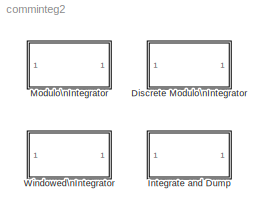
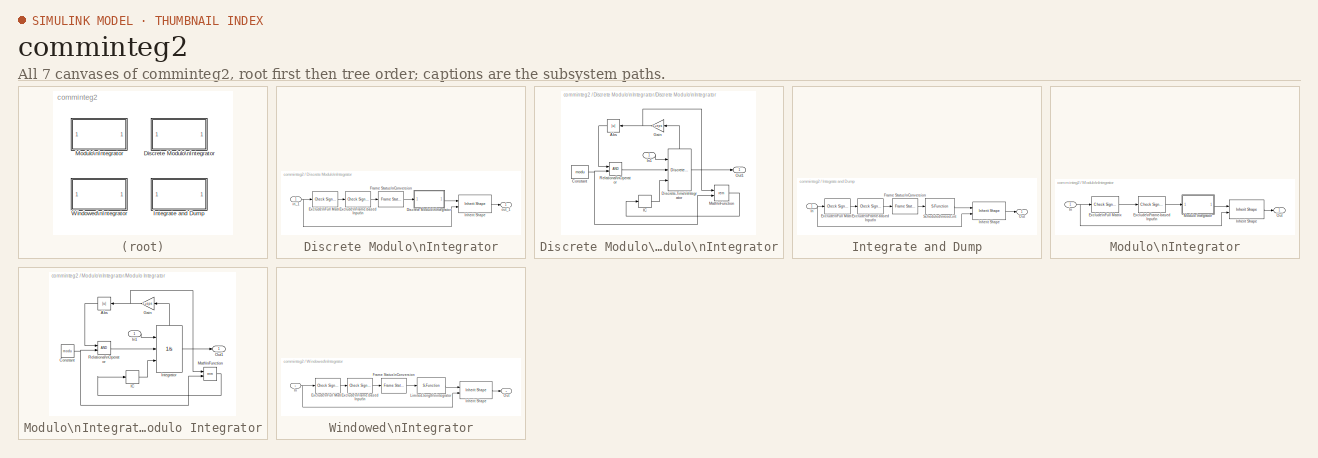
[diagram: thumbnail index - all 7 canvases of the model, root first then tree order]
MODEL comminteg2
KIND library
BLOCK [SubSystem] Discrete Modulo\nIntegrator
  ErrorFcn = commblkdmint
  MaskCallbackString = |||
  MaskDescription = Integrate the input signal in discrete time and then uses the Absolute value bound parameter, K, to produce output strictly between -K and K. The block uses the rem function in MATLAB.\n\nThe input can be either a scalar, a sample-based vector, or a frame-based row vector.  This block processes each vector element independently.
  MaskDisplay = disp('Discrete\\nModulo\\nIntegrator')
  MaskEnableString = on,on,on,on
  MaskHelp = helpview(commbhelp)
  MaskIconFrame = on
  MaskIconOpaque = on
  MaskIconRotate = none
  MaskIconUnits = autoscale
  MaskInitialization = commblkdmodint(gcb);
  MaskPromptString = Integration method:|Absolute value bound:|Initial condition:|Sample time:
  MaskSelfModifiable = on
  MaskStyleString = popup(Forward Euler|Backward Euler|Trapezoidal),edit,edit,edit
  MaskToolTipString = on,on,on,on
  MaskTunableValueString = on,on,on,on
  MaskType = Discrete Modulo Integrator
  MaskValueString = Forward Euler|1|0|1
  MaskVarAliasString = ,,,
  MaskVariables = method=&1;modu=@2;init=@3;ts=@4;
  MaskVisibilityString = on,on,on,on
  Ports = [1, 1]
  TreatAsAtomicUnit = off
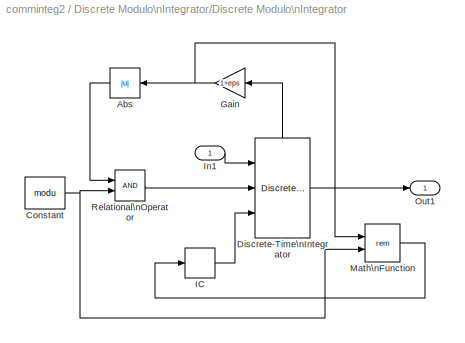
BLOCK [SubSystem] Discrete Modulo\nIntegrator/Discrete Modulo\nIntegrator
  Ports = [1, 1]
  TreatAsAtomicUnit = off
BLOCK [Abs] Discrete Modulo\nIntegrator/Discrete Modulo\nIntegrator/Abs
BLOCK [Constant] Discrete Modulo\nIntegrator/Discrete Modulo\nIntegrator/Constant
  Value = modu
BLOCK [DiscreteIntegrator] Discrete Modulo\nIntegrator/Discrete Modulo\nIntegrator/Discrete-Time\nIntegrator
  ExternalReset = rising
  InitialConditionSource = external
  IntegratorMethod = Forward Euler
  LowerSaturationLimit = -2*modu
  Ports = [3, 1, 0, 0, 1]
  SampleTime = ts
  ShowStatePort = on
  UpperSaturationLimit = 2*modu
BLOCK [Gain] Discrete Modulo\nIntegrator/Discrete Modulo\nIntegrator/Gain
  Gain = 1+eps
BLOCK [InitialCondition] Discrete Modulo\nIntegrator/Discrete Modulo\nIntegrator/IC
  Value = init
BLOCK [Inport] Discrete Modulo\nIntegrator/Discrete Modulo\nIntegrator/In1
BLOCK [Math] Discrete Modulo\nIntegrator/Discrete Modulo\nIntegrator/Math\nFunction
  Operator = rem
  Ports = [2, 1]
BLOCK [Outport] Discrete Modulo\nIntegrator/Discrete Modulo\nIntegrator/Out1
BLOCK [RelationalOperator] Discrete Modulo\nIntegrator/Discrete Modulo\nIntegrator/Relational\nOperator
BLOCK [Reference] Discrete Modulo\nIntegrator/Exclude\nFrame-based Input\n  REF=dspsigattribs/Check Signal\nAttributes
  Complexity = Ignore
  DatatypeCheckMethod = Ignore
  DatatypeGeneral = Boolean
  Dimensions = Row vector (2-D) or scalar
  DimsCheckMethod = Is not...
  DtypeFixedSpecific = Any fixed-point
  DtypeFloatSpecific = Any floating-point
  DtypeIntSpecific = Any integer
  Frame = Frame-based
  Ports = [1, 1]
  SampleMode = Ignore
  SigAttribCheckMethod = Matches attributes exactly
  SourceBlock = dspsigattribs/Check Signal\nAttributes
  SourceType = Check Signal Attributes
BLOCK [Reference] Discrete Modulo\nIntegrator/Exclude\nFull Matrix  REF=dspsigattribs/Check Signal\nAttributes
  Complexity = Ignore
  DatatypeCheckMethod = Ignore
  DatatypeGeneral = Boolean
  Dimensions = Full matrix (2-D)
  DimsCheckMethod = Is...
  DtypeFixedSpecific = Any fixed-point
  DtypeFloatSpecific = Any floating-point
  DtypeIntSpecific = Any integer
  Frame = Ignore
  Ports = [1, 1]
  SampleMode = Ignore
  SigAttribCheckMethod = Matches attributes exactly
  SourceBlock = dspsigattribs/Check Signal\nAttributes
  SourceType = Check Signal Attributes
BLOCK [Reference] Discrete Modulo\nIntegrator/Frame Status\nConversion  REF=dspsigattribs/Frame Status\nConversion
  Ports = [1, 1]
  SourceBlock = dspsigattribs/Frame Status\nConversion
  SourceType = Frame Status Conversion
  growRefPort = off
  outframe = Sample-based
BLOCK [Reference] Discrete Modulo\nIntegrator/Inherit Shape  REF=commblksprivate/Inherit Shape
  Ports = [2, 1]
  SourceBlock = commblksprivate/Inherit Shape
  SourceType = Inherit Shape
BLOCK [Inport] Discrete Modulo\nIntegrator/in_1
BLOCK [Outport] Discrete Modulo\nIntegrator/out_1
  InitialOutput = 0
BLOCK [SubSystem] Integrate and Dump
  ErrorFcn = commblkintdmp
  MaskCallbackString = ||
  MaskDescription = Integrate the input signal in discrete time over the Integration period and then reduce modulo the Absolute value bound parameter. The integrator resets its internal state before integrating the next period.\n\nThe input can be either a scalar, a sample-based vector, or a frame-based row vector.  This block processes each vector element independently.
  MaskDisplay = disp('Integrate\\nand Dump')
  MaskEnableString = on,on,on
  MaskHelp = helpview(commbhelp)
  MaskIconFrame = on
  MaskIconOpaque = on
  MaskIconRotate = none
  MaskIconUnits = autoscale
  MaskInitialization = limit(find(isinf(limit))) = realmax;\ntd(find(isinf(td))) = realmax;\n\nif(~isempty(ts))\n   if(length(ts) ~= 1)\n      error('Sample time parameter must be a real scalar.');\n   end;\nend;
  MaskPromptString = Absolute value bound:|Integration period (s):|Sample time:
  MaskSelfModifiable = on
  MaskStyleString = edit,edit,edit
  MaskToolTipString = on,on,on
  MaskTunableValueString = on,on,on
  MaskType = Integrate and Dump
  MaskValueString = 1|2|1
  MaskVarAliasString = ,,
  MaskVariables = limit=@1;td=@2;ts=@3;
  MaskVisibilityString = on,on,on
  Ports = [1, 1]
  TreatAsAtomicUnit = off
BLOCK [Reference] Integrate and Dump/Exclude\nFrame-based Input\n  REF=dspsigattribs/Check Signal\nAttributes
  Complexity = Ignore
  DatatypeCheckMethod = Ignore
  DatatypeGeneral = Boolean
  Dimensions = Row vector (2-D) or scalar
  DimsCheckMethod = Is not...
  DtypeFixedSpecific = Any fixed-point
  DtypeFloatSpecific = Any floating-point
  DtypeIntSpecific = Any integer
  Frame = Frame-based
  Ports = [1, 1]
  SampleMode = Ignore
  SigAttribCheckMethod = Matches attributes exactly
  SourceBlock = dspsigattribs/Check Signal\nAttributes
  SourceType = Check Signal Attributes
BLOCK [Reference] Integrate and Dump/Exclude\nFull Matrix  REF=dspsigattribs/Check Signal\nAttributes
  Complexity = Ignore
  DatatypeCheckMethod = Ignore
  DatatypeGeneral = Boolean
  Dimensions = Full matrix (2-D)
  DimsCheckMethod = Is...
  DtypeFixedSpecific = Any fixed-point
  DtypeFloatSpecific = Any floating-point
  DtypeIntSpecific = Any integer
  Frame = Ignore
  Ports = [1, 1]
  SampleMode = Ignore
  SigAttribCheckMethod = Matches attributes exactly
  SourceBlock = dspsigattribs/Check Signal\nAttributes
  SourceType = Check Signal Attributes
BLOCK [Reference] Integrate and Dump/Frame Status\nConversion  REF=dspsigattribs/Frame Status\nConversion
  Ports = [1, 1]
  SourceBlock = dspsigattribs/Frame Status\nConversion
  SourceType = Frame Status Conversion
  growRefPort = off
  outframe = Sample-based
BLOCK [Inport] Integrate and Dump/In
BLOCK [Reference] Integrate and Dump/Inherit Shape  REF=commblksprivate/Inherit Shape
  Ports = [2, 1]
  SourceBlock = commblksprivate/Inherit Shape
  SourceType = Inherit Shape
BLOCK [Outport] Integrate and Dump/Out
  InitialOutput = 0
BLOCK [S-Function] Integrate and Dump/Scheduled\nreset-int
  FunctionName = schdint
  Parameters = td, ts, limit
  Ports = [1, 1]
BLOCK [SubSystem] Modulo\nIntegrator
  MaskCallbackString = |
  MaskDescription = Integrate the input signal in continuous time and then uses the Absolute value bound parameter, K, to produce output strictly between -K and K. The block uses the rem function in MATLAB.\n\nThe input must be sample-based.
  MaskDisplay = disp('Modulo\\nIntegrator')
  MaskEnableString = on,on
  MaskHelp = helpview(commbhelp)
  MaskIconFrame = on
  MaskIconOpaque = on
  MaskIconRotate = none
  MaskIconUnits = autoscale
  MaskInitialization = [modu, init]=commblkmodint(gcb);\n
  MaskPromptString = Absolute value bound:|Initial condition:
  MaskStyleString = edit,edit
  MaskToolTipString = on,on
  MaskTunableValueString = on,on
  MaskType = Modulo Integrator
  MaskValueString = 1|0
  MaskVarAliasString = ,
  MaskVariables = modu=@1;init=@2;
  MaskVisibilityString = on,on
  Ports = [1, 1]
  TreatAsAtomicUnit = off
BLOCK [Reference] Modulo\nIntegrator/Exclude\nFrame-based Input\n  REF=dspsigattribs/Check Signal\nAttributes
  Complexity = Ignore
  DatatypeCheckMethod = Ignore
  DatatypeGeneral = Boolean
  Dimensions = Scalar (1-D or 2-D)
  DimsCheckMethod = Ignore
  DtypeFixedSpecific = Any fixed-point
  DtypeFloatSpecific = Any floating-point
  DtypeIntSpecific = Any integer
  Frame = Frame-based
  Ports = [1, 1]
  SampleMode = Ignore
  SigAttribCheckMethod = Matches attributes exactly
  SourceBlock = dspsigattribs/Check Signal\nAttributes
  SourceType = Check Signal Attributes
BLOCK [Reference] Modulo\nIntegrator/Exclude\nFull Matrix  REF=dspsigattribs/Check Signal\nAttributes
  Complexity = Ignore
  DatatypeCheckMethod = Ignore
  DatatypeGeneral = Boolean
  Dimensions = Full matrix (2-D)
  DimsCheckMethod = Is...
  DtypeFixedSpecific = Any fixed-point
  DtypeFloatSpecific = Any floating-point
  DtypeIntSpecific = Any integer
  Frame = Ignore
  Ports = [1, 1]
  SampleMode = Ignore
  SigAttribCheckMethod = Matches attributes exactly
  SourceBlock = dspsigattribs/Check Signal\nAttributes
  SourceType = Check Signal Attributes
BLOCK [Inport] Modulo\nIntegrator/In
BLOCK [Reference] Modulo\nIntegrator/Inherit Shape  REF=commblksprivate/Inherit Shape
  Ports = [2, 1]
  SourceBlock = commblksprivate/Inherit Shape
  SourceType = Inherit Shape
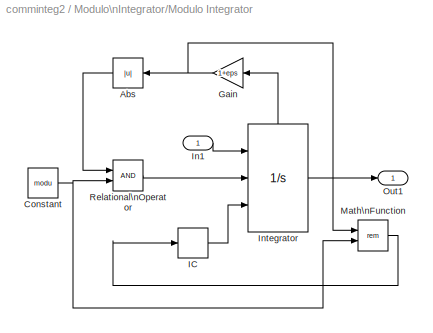
BLOCK [SubSystem] Modulo\nIntegrator/Modulo Integrator
  Ports = [1, 1]
  TreatAsAtomicUnit = off
BLOCK [Abs] Modulo\nIntegrator/Modulo Integrator/Abs
BLOCK [Constant] Modulo\nIntegrator/Modulo Integrator/Constant
  Value = modu
BLOCK [Gain] Modulo\nIntegrator/Modulo Integrator/Gain
  Gain = 1+eps
BLOCK [InitialCondition] Modulo\nIntegrator/Modulo Integrator/IC
  Value = init
BLOCK [Inport] Modulo\nIntegrator/Modulo Integrator/In1
BLOCK [Integrator] Modulo\nIntegrator/Modulo Integrator/Integrator
  ExternalReset = rising
  InitialConditionSource = external
  LowerSaturationLimit = 0
  Ports = [3, 1, 0, 0, 1]
  ShowStatePort = on
  UpperSaturationLimit = 1
BLOCK [Math] Modulo\nIntegrator/Modulo Integrator/Math\nFunction
  Operator = rem
  Ports = [2, 1]
BLOCK [Outport] Modulo\nIntegrator/Modulo Integrator/Out1
BLOCK [RelationalOperator] Modulo\nIntegrator/Modulo Integrator/Relational\nOperator
BLOCK [Outport] Modulo\nIntegrator/Out
BLOCK [SubSystem] Windowed\nIntegrator
  ErrorFcn = commblkwint
  MaskCallbackString = |||
  MaskDescription = Integrate the input signal in discrete time from time t-T to t where T is the Integration window length. This block assumes that the signal is zero for all negative times.\n\nThe input can be either a scalar, a sample-based vector, or a frame-based row vector.  This block processes each vector element independently.
  MaskDisplay = disp('Windowed\\nIntegrator')
  MaskEnableString = on,on,on,on
  MaskHelp = helpview(commbhelp)
  MaskIconFrame = on
  MaskIconOpaque = on
  MaskIconRotate = none
  MaskIconUnits = autoscale
  MaskInitialization = method = lower(method);\n\nswitch method\ncase {'forward euler' 'backward euler'}\ncase 'trapezoidal'\n	method = 'first order';\notherwise\n   error('Unknown integration method.')\nend;\n\nif(~isempty(sample_time))\n   if(length(sample_time) ~= 1)\n      error('Sample time parameter must be a real scalar.');\n   end;\nend;\n
  MaskPromptString = Integration method:|Input vector size:|Integration window length (s):|Sample time:
  MaskStyleString = popup(Forward Euler|Backward Euler|Trapezoidal),edit,edit,edit
  MaskToolTipString = on,on,on,on
  MaskTunableValueString = on,on,on,on
  MaskType = Windowed Integrator
  MaskValueString = Forward Euler|1|2|1
  MaskVarAliasString = ,,,
  MaskVariables = method=&1;vec=@2;T=@3;sample_time=@4;
  MaskVisibilityString = on,on,on,on
  Ports = [1, 1]
  TreatAsAtomicUnit = off
BLOCK [Reference] Windowed\nIntegrator/Exclude\nFrame-based Input\n  REF=dspsigattribs/Check Signal\nAttributes
  Complexity = Ignore
  DatatypeCheckMethod = Ignore
  DatatypeGeneral = Boolean
  Dimensions = Row vector (2-D) or scalar
  DimsCheckMethod = Is not...
  DtypeFixedSpecific = Any fixed-point
  DtypeFloatSpecific = Any floating-point
  DtypeIntSpecific = Any integer
  Frame = Frame-based
  Ports = [1, 1]
  SampleMode = Ignore
  SigAttribCheckMethod = Matches attributes exactly
  SourceBlock = dspsigattribs/Check Signal\nAttributes
  SourceType = Check Signal Attributes
BLOCK [Reference] Windowed\nIntegrator/Exclude\nFull Matrix  REF=dspsigattribs/Check Signal\nAttributes
  Complexity = Ignore
  DatatypeCheckMethod = Ignore
  DatatypeGeneral = Boolean
  Dimensions = Full matrix (2-D)
  DimsCheckMethod = Is...
  DtypeFixedSpecific = Any fixed-point
  DtypeFloatSpecific = Any floating-point
  DtypeIntSpecific = Any integer
  Frame = Ignore
  Ports = [1, 1]
  SampleMode = Ignore
  SigAttribCheckMethod = Matches attributes exactly
  SourceBlock = dspsigattribs/Check Signal\nAttributes
  SourceType = Check Signal Attributes
BLOCK [Reference] Windowed\nIntegrator/Frame Status\nConversion  REF=dspsigattribs/Frame Status\nConversion
  Ports = [1, 1]
  SourceBlock = dspsigattribs/Frame Status\nConversion
  SourceType = Frame Status Conversion
  growRefPort = off
  outframe = Sample-based
BLOCK [Inport] Windowed\nIntegrator/In
BLOCK [Reference] Windowed\nIntegrator/Inherit Shape  REF=commblksprivate/Inherit Shape
  Ports = [2, 1]
  SourceBlock = commblksprivate/Inherit Shape
  SourceType = Inherit Shape
BLOCK [S-Function] Windowed\nIntegrator/Limited-length\nintegrator
  FunctionName = moveint
  Parameters = vec,T,sample_time,method
  Ports = [1, 1]
BLOCK [Outport] Windowed\nIntegrator/Out
  InitialOutput = 0
LINE Discrete Modulo\nIntegrator/Discrete Modulo\nIntegrator/Abs:1 -> Discrete Modulo\nIntegrator/Discrete Modulo\nIntegrator/Relational\nOperator:1
NET Discrete Modulo\nIntegrator/Discrete Modulo\nIntegrator/Constant:1 -> Discrete Modulo\nIntegrator/Discrete Modulo\nIntegrator/Math\nFunction:2, Discrete Modulo\nIntegrator/Discrete Modulo\nIntegrator/Relational\nOperator:2
LINE Discrete Modulo\nIntegrator/Discrete Modulo\nIntegrator/Discrete-Time\nIntegrator:1 -> Discrete Modulo\nIntegrator/Discrete Modulo\nIntegrator/Out1:1
LINE Discrete Modulo\nIntegrator/Discrete Modulo\nIntegrator/Discrete-Time\nIntegrator:state -> Discrete Modulo\nIntegrator/Discrete Modulo\nIntegrator/Gain:1
NET Discrete Modulo\nIntegrator/Discrete Modulo\nIntegrator/Gain:1 -> Discrete Modulo\nIntegrator/Discrete Modulo\nIntegrator/Abs:1, Discrete Modulo\nIntegrator/Discrete Modulo\nIntegrator/Math\nFunction:1
LINE Discrete Modulo\nIntegrator/Discrete Modulo\nIntegrator/IC:1 -> Discrete Modulo\nIntegrator/Discrete Modulo\nIntegrator/Discrete-Time\nIntegrator:3
LINE Discrete Modulo\nIntegrator/Discrete Modulo\nIntegrator/In1:1 -> Discrete Modulo\nIntegrator/Discrete Modulo\nIntegrator/Discrete-Time\nIntegrator:1
LINE Discrete Modulo\nIntegrator/Discrete Modulo\nIntegrator/Math\nFunction:1 -> Discrete Modulo\nIntegrator/Discrete Modulo\nIntegrator/IC:1
LINE Discrete Modulo\nIntegrator/Discrete Modulo\nIntegrator/Relational\nOperator:1 -> Discrete Modulo\nIntegrator/Discrete Modulo\nIntegrator/Discrete-Time\nIntegrator:2
LINE Discrete Modulo\nIntegrator/Discrete Modulo\nIntegrator:1 -> Discrete Modulo\nIntegrator/Inherit Shape:1
LINE Discrete Modulo\nIntegrator/Exclude\nFrame-based Input\n:1 -> Discrete Modulo\nIntegrator/Frame Status\nConversion:1
LINE Discrete Modulo\nIntegrator/Exclude\nFull Matrix:1 -> Discrete Modulo\nIntegrator/Exclude\nFrame-based Input\n:1
LINE Discrete Modulo\nIntegrator/Frame Status\nConversion:1 -> Discrete Modulo\nIntegrator/Discrete Modulo\nIntegrator:1
LINE Discrete Modulo\nIntegrator/Inherit Shape:1 -> Discrete Modulo\nIntegrator/out_1:1
NET Discrete Modulo\nIntegrator/in_1:1 -> Discrete Modulo\nIntegrator/Exclude\nFull Matrix:1, Discrete Modulo\nIntegrator/Inherit Shape:2
LINE Integrate and Dump/Exclude\nFrame-based Input\n:1 -> Integrate and Dump/Frame Status\nConversion:1
LINE Integrate and Dump/Exclude\nFull Matrix:1 -> Integrate and Dump/Exclude\nFrame-based Input\n:1
LINE Integrate and Dump/Frame Status\nConversion:1 -> Integrate and Dump/Scheduled\nreset-int:1
NET Integrate and Dump/In:1 -> Integrate and Dump/Exclude\nFull Matrix:1, Integrate and Dump/Inherit Shape:2
LINE Integrate and Dump/Inherit Shape:1 -> Integrate and Dump/Out:1
LINE Integrate and Dump/Scheduled\nreset-int:1 -> Integrate and Dump/Inherit Shape:1
LINE Modulo\nIntegrator/Exclude\nFrame-based Input\n:1 -> Modulo\nIntegrator/Modulo Integrator:1
LINE Modulo\nIntegrator/Exclude\nFull Matrix:1 -> Modulo\nIntegrator/Exclude\nFrame-based Input\n:1
NET Modulo\nIntegrator/In:1 -> Modulo\nIntegrator/Exclude\nFull Matrix:1, Modulo\nIntegrator/Inherit Shape:2
LINE Modulo\nIntegrator/Inherit Shape:1 -> Modulo\nIntegrator/Out:1
LINE Modulo\nIntegrator/Modulo Integrator/Abs:1 -> Modulo\nIntegrator/Modulo Integrator/Relational\nOperator:1
NET Modulo\nIntegrator/Modulo Integrator/Constant:1 -> Modulo\nIntegrator/Modulo Integrator/Math\nFunction:2, Modulo\nIntegrator/Modulo Integrator/Relational\nOperator:2
NET Modulo\nIntegrator/Modulo Integrator/Gain:1 -> Modulo\nIntegrator/Modulo Integrator/Abs:1, Modulo\nIntegrator/Modulo Integrator/Math\nFunction:1
LINE Modulo\nIntegrator/Modulo Integrator/IC:1 -> Modulo\nIntegrator/Modulo Integrator/Integrator:3
LINE Modulo\nIntegrator/Modulo Integrator/In1:1 -> Modulo\nIntegrator/Modulo Integrator/Integrator:1
LINE Modulo\nIntegrator/Modulo Integrator/Integrator:1 -> Modulo\nIntegrator/Modulo Integrator/Out1:1
LINE Modulo\nIntegrator/Modulo Integrator/Integrator:state -> Modulo\nIntegrator/Modulo Integrator/Gain:1
LINE Modulo\nIntegrator/Modulo Integrator/Math\nFunction:1 -> Modulo\nIntegrator/Modulo Integrator/IC:1
LINE Modulo\nIntegrator/Modulo Integrator/Relational\nOperator:1 -> Modulo\nIntegrator/Modulo Integrator/Integrator:2
LINE Modulo\nIntegrator/Modulo Integrator:1 -> Modulo\nIntegrator/Inherit Shape:1
LINE Windowed\nIntegrator/Exclude\nFrame-based Input\n:1 -> Windowed\nIntegrator/Frame Status\nConversion:1
LINE Windowed\nIntegrator/Exclude\nFull Matrix:1 -> Windowed\nIntegrator/Exclude\nFrame-based Input\n:1
LINE Windowed\nIntegrator/Frame Status\nConversion:1 -> Windowed\nIntegrator/Limited-length\nintegrator:1
NET Windowed\nIntegrator/In:1 -> Windowed\nIntegrator/Exclude\nFull Matrix:1, Windowed\nIntegrator/Inherit Shape:2
LINE Windowed\nIntegrator/Inherit Shape:1 -> Windowed\nIntegrator/Out:1
LINE Windowed\nIntegrator/Limited-length\nintegrator:1 -> Windowed\nIntegrator/Inherit Shape:1
note: NET lines group one-source signal fan-out (src -> all destinations, sorted); 1:1 wires keep LINE
